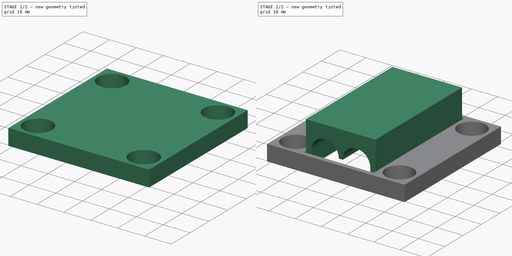
[diagram: build sequence overview — one tinted view per stage of 2, left to right]
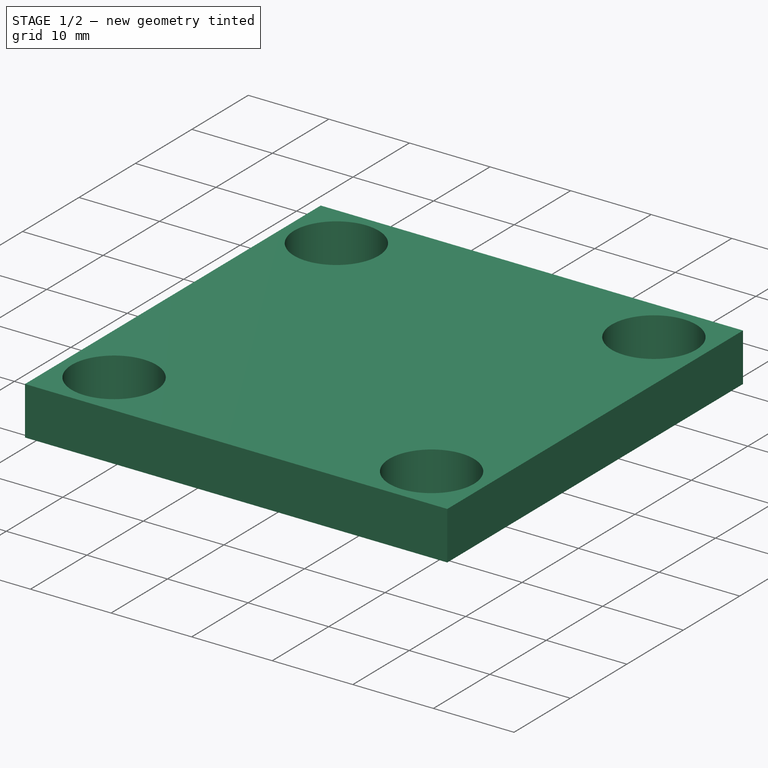
[diagram: stage 1 of 2 — iso view after this stage's code; geometry added in this stage tinted green]
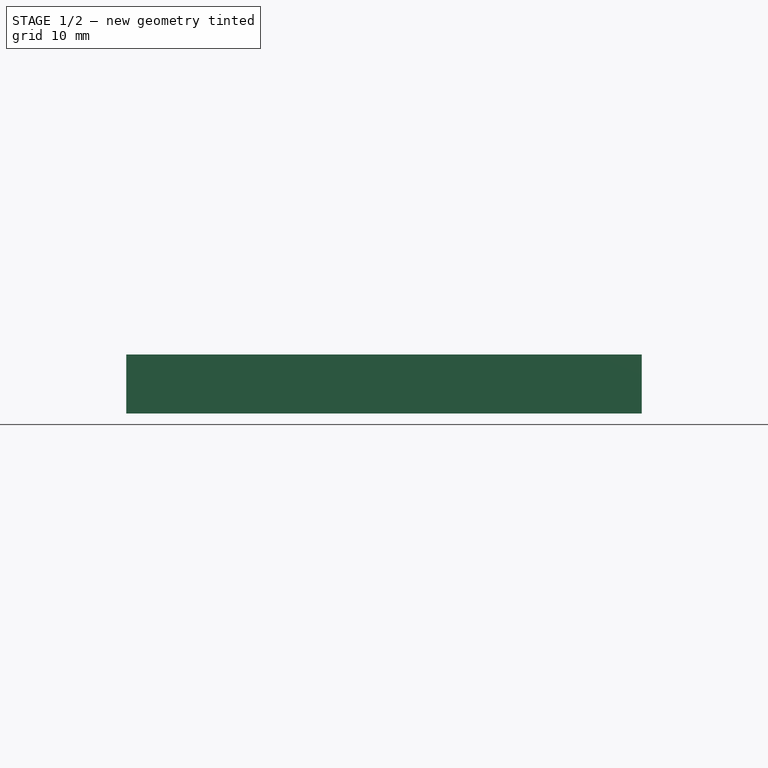
[diagram: stage 1 of 2 — front view after this stage's code; geometry added in this stage tinted green]
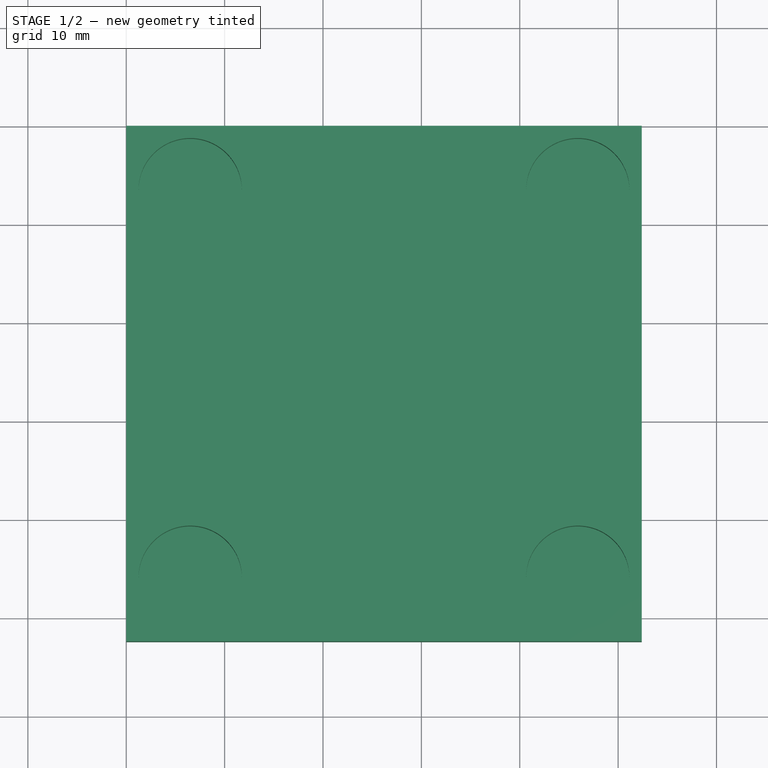
[diagram: stage 1 of 2 — top view after this stage's code; geometry added in this stage tinted green]
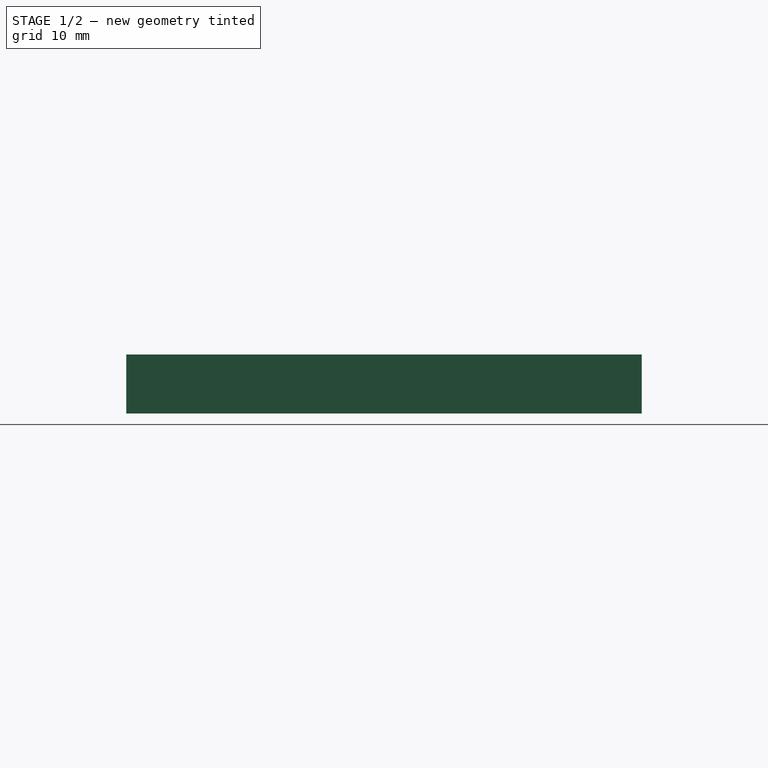
[diagram: stage 1 of 2 — right view after this stage's code; geometry added in this stage tinted green]
FCSTD DOCUMENT  (FreeCAD 0.19RUnknown)
Label: Option_3
License: All rights reserved
LicenseURL: http://en.wikipedia.org/wiki/All_rights_reserved
objects: Sketcher::SketchObject×6, PartDesign::Body×3, PartDesign::Pad×2, PartDesign::Pocket×2, PartDesign::Plane×2, PartDesign::ShapeBinder×1
note: 20 computed .brp shape members not serialized (recipe doc carries the construction recipe); baked Part::Feature solids carry a one-line shape summary decoded from their .brp

FEATURE [Sketcher::SketchObject] Sketch
  FullyConstrained = true
  MapMode = 5
  Support = -> [XY_Plane]
  sketch-geometry (4):
    g0: LineSegment StartX=0 StartY=0 StartZ=0 EndX=52.4 EndY=0 EndZ=0
    g1: LineSegment StartX=52.4 StartY=0 StartZ=0 EndX=52.4 EndY=-52.4 EndZ=0
    g2: LineSegment StartX=52.4 StartY=-52.4 StartZ=0 EndX=0 EndY=-52.4 EndZ=0
    g3: LineSegment StartX=0 StartY=-52.4 StartZ=0 EndX=0 EndY=0 EndZ=0
  constraints (11):
    c: Coincident(g0,g1)
    c: Coincident(g1,g2)
    c: Coincident(g2,g3)
    c: Coincident(g3,g0)
    c: Horizontal(g0)
    c: Horizontal(g2)
    c: Vertical(g1)
    c: Vertical(g3)
    c: Coincident(g0,g-1)
    c: DistanceY(g3,g3) = 52.4
    c: DistanceX(g0,g0) = 52.4
FEATURE [PartDesign::Pad] Pad
  Direction = (1,1,1)
  Length = 6
  Length2 = 100
  Profile = -> Sketch
  Type = 0
FEATURE [Sketcher::SketchObject] Sketch001
  ExternalGeometry = -> [Pad]
  FullyConstrained = true
  MapMode = 5
  Placement = pos=(0,0,6) rot=(0,0,1;0rad)
  Support = -> [Pad]
  sketch-geometry (12):
    g0: LineSegment StartX=52.4 StartY=0 StartZ=0 EndX=0 EndY=0 EndZ=0
    g1: LineSegment StartX=0 StartY=0 StartZ=0 EndX=0 EndY=-52.4 EndZ=0
    g2: LineSegment StartX=0 StartY=-52.4 StartZ=0 EndX=52.4 EndY=-52.4 EndZ=0
    g3: LineSegment StartX=52.4 StartY=-52.4 StartZ=0 EndX=52.4 EndY=0 EndZ=0
    g4: Circle CenterX=6.5 CenterY=-6.5 CenterZ=0 NormalX=0 NormalY=0 NormalZ=1 AngleXU=0 Radius=6.5
    g5: Circle CenterX=45.9 CenterY=-6.5 CenterZ=0 NormalX=0 NormalY=0 NormalZ=1 AngleXU=0 Radius=6.5
    g6: Circle CenterX=6.5 CenterY=-45.9 CenterZ=0 NormalX=0 NormalY=0 NormalZ=1 AngleXU=0 Radius=6.5
    g7: Circle CenterX=45.9 CenterY=-45.9 CenterZ=0 NormalX=0 NormalY=0 NormalZ=1 AngleXU=0 Radius=6.5
    g8: Circle CenterX=6.5 CenterY=-6.5 CenterZ=0 NormalX=0 NormalY=0 NormalZ=1 AngleXU=0 Radius=5.25
    g9: Circle CenterX=45.9 CenterY=-6.5 CenterZ=0 NormalX=0 NormalY=0 NormalZ=1 AngleXU=0 Radius=5.25
    g10: Circle CenterX=45.9 CenterY=-45.9 CenterZ=0 NormalX=0 NormalY=0 NormalZ=1 AngleXU=0 Radius=5.25
    g11: Circle CenterX=6.5 CenterY=-45.9 CenterZ=0 NormalX=0 NormalY=0 NormalZ=1 AngleXU=0 Radius=5.25
  constraints (30):
    c: Coincident(g0,g1)
    c: Coincident(g1,g2)
    c: Coincident(g2,g3)
    c: Coincident(g3,g0)
    c: Horizontal(g0)
    c: Horizontal(g2)
    c: Vertical(g1)
    c: Vertical(g3)
    c: Coincident(g0,g-3)
    c: Coincident(g1,g-4)
    c: Tangent(g4,g1)
    c: Tangent(g5,g3)
    c: Tangent(g6,g1)
    c: Tangent(g7,g3)
    c: Diameter(g4) = 13
    c: Diameter(g5) = 13
    c: Diameter(g6) = 13
    c: Diameter(g7) = 13
    c: Tangent(g4,g0)
    c: Tangent(g5,g0)
    c: Tangent(g2,g6)
    c: Tangent(g7,g2)
    c: Coincident(g8,g4)
    c: Coincident(g9,g5)
    c: Coincident(g10,g7)
    c: Coincident(g11,g6)
    c: Diameter(g10) = 10.5
    c: Diameter(g11) = 10.5
    c: Diameter(g8) = 10.5
    c: Diameter(g9) = 10.5
FEATURE [PartDesign::Pocket] Pocket
  BaseFeature = -> Pad
  Length = 5
  Length2 = 100
  Profile = -> Sketch001
  Type = 0
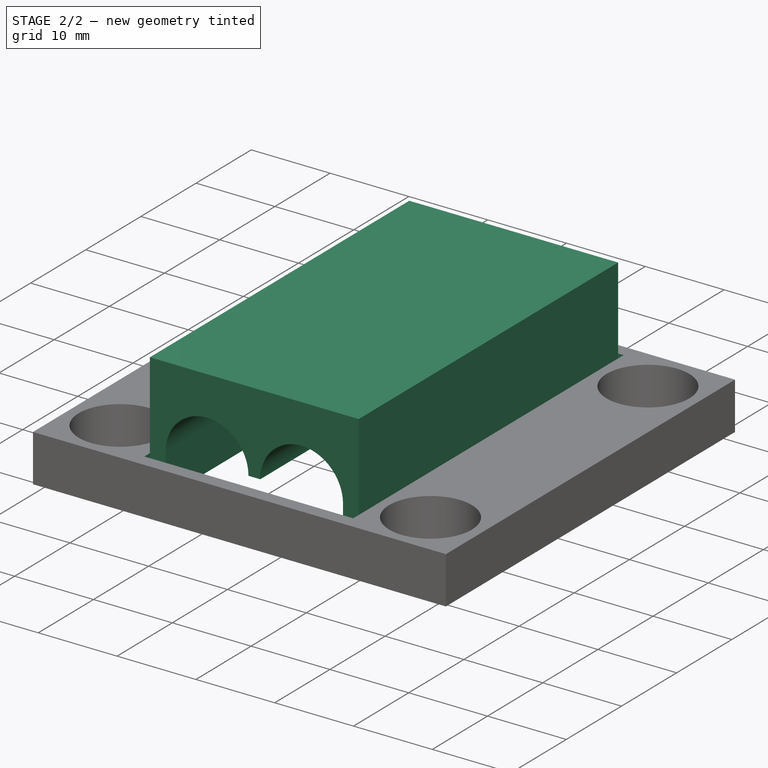
[diagram: stage 2 of 2 — iso view after this stage's code; geometry added in this stage tinted green]
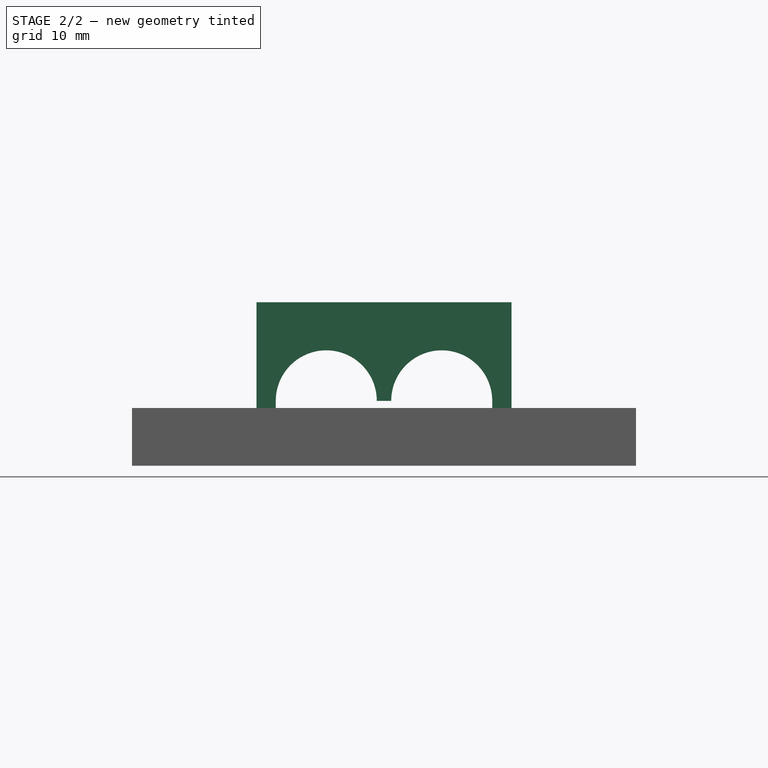
[diagram: stage 2 of 2 — front view after this stage's code; geometry added in this stage tinted green]
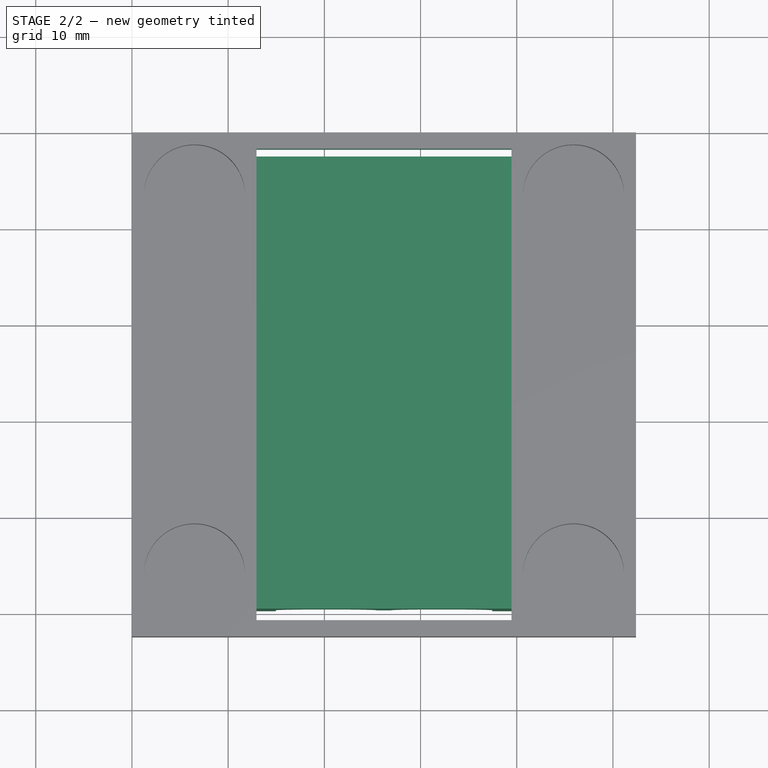
[diagram: stage 2 of 2 — top view after this stage's code; geometry added in this stage tinted green]
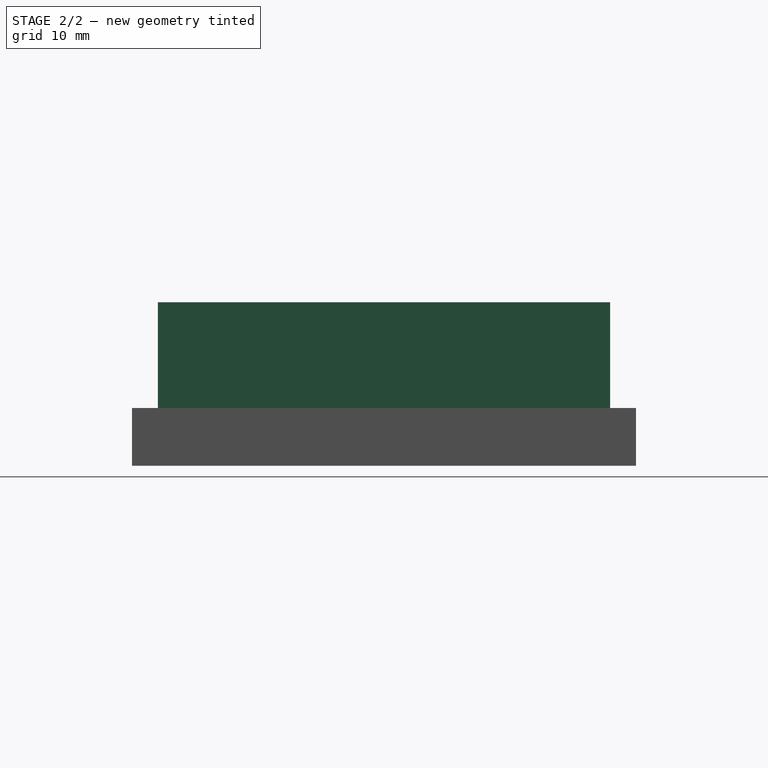
[diagram: stage 2 of 2 — right view after this stage's code; geometry added in this stage tinted green]
FEATURE [PartDesign::ShapeBinder] ShapeBinder
  Support = -> [Pocket]
  TraceSupport = false
FEATURE [PartDesign::Plane] DatumPlane
  AttachmentOffset = pos=(0,0,-26.2) rot=(0,0,1;0rad)
  Length = 89.8419
  MapMode = 5
  Placement = pos=(0,-26.2,5.8e-15) rot=(0,0.707107,0.707107;3.14159rad)
  ResizeMode = 0
  Support = -> [ShapeBinder]
  Width = 62.4419
FEATURE [Sketcher::SketchObject] Sketch002
  ExternalGeometry = -> [ShapeBinder]
  FullyConstrained = false
  MapMode = 5
  Placement = pos=(0,-26.2,5.8e-15) rot=(0,0.707107,0.707107;3.14159rad)
  Support = -> [DatumPlane]
  sketch-geometry (14):
    g0: LineSegment StartX=-52.4 StartY=6 StartZ=0 EndX=0 EndY=6 EndZ=0
    g1: LineSegment StartX=0 StartY=6 StartZ=0 EndX=0 EndY=7 EndZ=0
    g2: LineSegment StartX=0 StartY=7 StartZ=0 EndX=-52.4 EndY=7 EndZ=0
    g3: LineSegment StartX=-52.4 StartY=7 StartZ=0 EndX=-52.4 EndY=6 EndZ=0
    g4: LineSegment StartX=-50.4 StartY=7 StartZ=0 EndX=-2 EndY=7 EndZ=0
    g5: LineSegment StartX=-2 StartY=7 StartZ=0 EndX=-2 EndY=11 EndZ=0
    g6: LineSegment StartX=-2 StartY=11 StartZ=0 EndX=-50.4 EndY=11 EndZ=0
    g7: LineSegment StartX=-50.4 StartY=11 StartZ=0 EndX=-50.4 EndY=7 EndZ=0
    g8: Circle CenterX=-45.15 CenterY=12.4669 CenterZ=0 NormalX=0 NormalY=0 NormalZ=1 AngleXU=0 Radius=5.25
    g9: Circle CenterX=-7.75 CenterY=12.25 CenterZ=0 NormalX=0 NormalY=0 NormalZ=1 AngleXU=0 Radius=5.25
    g10: LineSegment StartX=-38.3604 StartY=11.6421 StartZ=0 EndX=-12.8296 EndY=11.6421 EndZ=0
    g11: LineSegment StartX=-12.8296 StartY=11.6421 StartZ=0 EndX=-12.8296 EndY=15.8309 EndZ=0
    g12: LineSegment StartX=-12.8296 StartY=15.8309 StartZ=0 EndX=-38.3604 EndY=15.8309 EndZ=0
    g13: LineSegment StartX=-38.3604 StartY=15.8309 StartZ=0 EndX=-38.3604 EndY=11.6421 EndZ=0
  constraints (36):
    c: Coincident(g0,g1)
    c: Coincident(g1,g2)
    c: Coincident(g2,g3)
    c: Coincident(g3,g0)
    c: Horizontal(g2)
    c: Vertical(g1)
    c: Vertical(g3)
    c: Coincident(g0,g-3)
    c: Coincident(g0,g-4)
    c: DistanceY(g3,g3) = 1
    c: Coincident(g4,g5)
    c: Coincident(g5,g6)
    c: Coincident(g6,g7)
    c: Coincident(g7,g4)
    c: Horizontal(g4)
    c: Horizontal(g6)
    c: Vertical(g5)
    c: Vertical(g7)
    c: PointOnObject(g4,g2)
    c: DistanceX(g2,g4) = 2
    c: DistanceX(g4,g1) = 2
    c: Diameter(g8) = 10.5
    c: Tangent(g8,g7)
    c: Diameter(g9) = 10.5
    c: Tangent(g9,g2)
    c: DistanceY(g7,g7) = 4
    c: Coincident(g10,g11)
    c: Coincident(g11,g12)
    c: Coincident(g12,g13)
    c: Coincident(g13,g10)
    c: Horizontal(g10)
    c: Horizontal(g12)
    c: Vertical(g11)
    c: Vertical(g13)
    c: DistanceX(g12,g12) = 25.5308
    c: DistanceX(g9,g5) = 5.75
FEATURE [PartDesign::Body] Body001  label="battery"
  Group = -> [ShapeBinder,DatumPlane,Sketch002]
  Origin = -> Origin001
FEATURE [PartDesign::Plane] DatumPlane001
  AttachmentOffset = pos=(0,0,-26.2) rot=(0,0,1;0rad)
  Length = 89.8419
  MapMode = 5
  Placement = pos=(0,-26.2,-5.8e-15) rot=(1,0,0;1.5708rad)
  ResizeMode = 0
  Support = -> [Pocket]
  Width = 62.4419
FEATURE [Sketcher::SketchObject] Sketch003
  ExternalGeometry = -> [Pocket]
  FullyConstrained = false
  MapMode = 5
  Placement = pos=(0,-26.2,-5.8e-15) rot=(1,0,0;1.5708rad)
  Support = -> [DatumPlane001]
  sketch-geometry (17):
    g0: LineSegment StartX=0 StartY=6 StartZ=0 EndX=52.4 EndY=6 EndZ=0
    g1: LineSegment StartX=52.4 StartY=6 StartZ=0 EndX=52.4 EndY=0 EndZ=0
    g2: LineSegment StartX=52.4 StartY=0 StartZ=0 EndX=0 EndY=0 EndZ=0
    g3: LineSegment StartX=0 StartY=0 StartZ=0 EndX=0 EndY=6 EndZ=0
    g4: LineSegment StartX=26.2 StartY=18.1698 StartZ=0 EndX=26.2 EndY=-9.44134 EndZ=0
    g5: Circle CenterX=20.2 CenterY=6.75 CenterZ=0 NormalX=0 NormalY=0 NormalZ=1 AngleXU=0 Radius=5.25
    g6: Circle CenterX=32.2 CenterY=6.75 CenterZ=0 NormalX=0 NormalY=0 NormalZ=1 AngleXU=0 Radius=5.25
    g7: LineSegment StartX=9.06848 StartY=6.75 StartZ=0 EndX=48.0134 EndY=6.75 EndZ=0
    g8: LineSegment StartX=12.5705 StartY=1.5 StartZ=0 EndX=37.8862 EndY=1.5 EndZ=0
    g9: LineSegment StartX=12.95 StartY=9.48699 StartZ=0 EndX=39.45 EndY=9.48699 EndZ=0
    g10: LineSegment StartX=39.45 StartY=9.48699 StartZ=0 EndX=39.45 EndY=0 EndZ=0
    g11: LineSegment StartX=39.45 StartY=0 StartZ=0 EndX=12.95 EndY=0 EndZ=0
    g12: LineSegment StartX=12.95 StartY=0 StartZ=0 EndX=12.95 EndY=9.48699 EndZ=0
    g13: LineSegment StartX=14.95 StartY=13.6364 StartZ=0 EndX=37.45 EndY=13.6364 EndZ=0
    g14: LineSegment StartX=37.45 StartY=13.6364 StartZ=0 EndX=37.45 EndY=3.54924 EndZ=0
    g15: LineSegment StartX=37.45 StartY=3.54924 StartZ=0 EndX=14.95 EndY=3.54924 EndZ=0
    g16: LineSegment StartX=14.95 StartY=3.54924 StartZ=0 EndX=14.95 EndY=13.6364 EndZ=0
  constraints (44):
    c: Coincident(g0,g1)
    c: Coincident(g1,g2)
    c: Coincident(g2,g3)
    c: Coincident(g3,g0)
    c: Horizontal(g0)
    c: Horizontal(g2)
    c: Vertical(g1)
    c: Vertical(g3)
    c: Coincident(g0,g-4)
    c: Coincident(g1,g-3)
    c: Vertical(g4)
    c: DistanceX(g0,g4) = 26.2
    c: Diameter(g5) = 10.5
    c: Diameter(g6) = 10.5
    c: Horizontal(g7)
    c: PointOnObject(g5,g7)
    c: PointOnObject(g6,g7)
    c: DistanceX(g5,g6) = 12
    c: DistanceX(g5,g4) = 6
    c: Horizontal(g8)
    c: Tangent(g8,g6)
    c: DistanceY(g-1,g8) = 1.5
    c: Coincident(g9,g10)
    c: Coincident(g10,g11)
    c: Coincident(g11,g12)
    c: Coincident(g12,g9)
    c: Horizontal(g9)
    c: Horizontal(g11)
    c: Vertical(g10)
    c: Vertical(g12)
    c: Coincident(g13,g14)
    c: Coincident(g14,g15)
    c: Coincident(g15,g16)
    c: Coincident(g16,g13)
    c: Horizontal(g13)
    c: Horizontal(g15)
    c: Vertical(g14)
    c: Vertical(g16)
    c: Tangent(g5,g16)
    c: Tangent(g6,g14)
    c: DistanceX(g13,g13) = 22.5
    c: PointOnObject(g11,g2)
    c: DistanceX(g9,g13) = 2
    c: DistanceX(g13,g9) = 2
FEATURE [PartDesign::Pocket] Pocket001
  BaseFeature = -> Pocket
  Length = 49
  Length2 = 100
  Midplane = true
  Profile = -> Sketch003
  Type = 0
FEATURE [Sketcher::SketchObject] Sketch004
  ExternalGeometry = -> [Pocket001]
  FullyConstrained = false
  MapMode = 5
  Placement = pos=(0,-26.2,-5.8e-15) rot=(1,0,0;1.5708rad)
  Support = -> [DatumPlane001]
  sketch-geometry (13):
    g0: LineSegment StartX=26.2 StartY=-5.30025 StartZ=0 EndX=26.2 EndY=19.9909 EndZ=0
    g1: ArcOfCircle CenterX=20.2 CenterY=6.75 CenterZ=0 NormalX=0 NormalY=0 NormalZ=1 AngleXU=0 Radius=5.25 StartAngle=0 EndAngle=3.14159
    g2: ArcOfCircle CenterX=32.2 CenterY=6.75 CenterZ=0 NormalX=0 NormalY=0 NormalZ=1 AngleXU=0 Radius=5.25 StartAngle=0 EndAngle=3.14159
    g3: LineSegment StartX=25.45 StartY=6.75 StartZ=0 EndX=26.95 EndY=6.75 EndZ=0
    g4: LineSegment StartX=12.95 StartY=1.5 StartZ=0 EndX=14.95 EndY=1.5 EndZ=0
    g5: LineSegment StartX=14.95 StartY=1.5 StartZ=0 EndX=14.95 EndY=6.75 EndZ=0
    g6: LineSegment StartX=12.95 StartY=17 StartZ=0 EndX=12.95 EndY=1.5 EndZ=0
    g7: LineSegment StartX=12.95 StartY=6 StartZ=0 EndX=12.95 EndY=0 EndZ=0
    g8: LineSegment StartX=12.95 StartY=17 StartZ=0 EndX=39.45 EndY=17 EndZ=0
    g9: LineSegment StartX=37.45 StartY=6.75 StartZ=0 EndX=37.45 EndY=1.5 EndZ=0
    g10: LineSegment StartX=37.45 StartY=1.5 StartZ=0 EndX=39.45 EndY=1.5 EndZ=0
    g11: LineSegment StartX=39.45 StartY=1.5 StartZ=0 EndX=39.45 EndY=17 EndZ=0
    g12: LineSegment StartX=39.45 StartY=6 StartZ=0 EndX=39.45 EndY=0 EndZ=0
  constraints (35):
    c: Vertical(g0)
    c: DistanceX(g-3,g-4) = 26.5
    c: DistanceX(g-3,g0) = 13.25
    c: Diameter(g1) = 10.5
    c: Diameter(g2) = 10.5
    c: DistanceX(g1,g2) = 12
    c: Horizontal(g3)
    c: PointOnObject(g2,g3)
    c: PointOnObject(g1,g3)
    c: DistanceX(g1,g0) = 6
    c: DistanceY(g-5,g1) = 6.75
    c: Coincident(g4,g5)
    c: Coincident(g6,g4)
    c: Horizontal(g4)
    c: Vertical(g5)
    c: Vertical(g6)
    c: Coincident(g7,g-3)
    c: Coincident(g7,g-5)
    c: PointOnObject(g4,g7)
    c: DistanceY(g7,g4) = 1.5
    c: DistanceY(g7,g6) = 11
    c: Horizontal(g8)
    c: Coincident(g9,g10)
    c: Coincident(g10,g11)
    c: Horizontal(g10)
    c: Vertical(g9)
    c: Vertical(g11)
    c: Coincident(g12,g-4)
    c: Coincident(g12,g-6)
    c: PointOnObject(g10,g12)
    c: DistanceY(g12,g9) = 1.5
    c: Coincident(g3,g1)
    c: Coincident(g3,g2)
    c: Tangent(g5,g1) = 1.5708
    c: Tangent(g9,g2) = 1.5708
FEATURE [PartDesign::Pad] Pad001
  BaseFeature = -> Pocket001
  Direction = (1,1,1)
  Length = 47
  Length2 = 100
  Midplane = true
  Profile = -> Sketch004
  Type = 0
FEATURE [PartDesign::Body] Body002
  Origin = -> Origin002
FEATURE [Sketcher::SketchObject] Sketch005
  ExternalGeometry = -> [Pad001]
  FullyConstrained = false
  MapMode = 5
  Placement = pos=(0,-2.7,7e-16) rot=(0,0.707107,0.707107;3.14159rad)
  Support = -> [Pad001]
  sketch-geometry (4):
    g0: LineSegment StartX=-12.95 StartY=17 StartZ=0 EndX=-39.45 EndY=17 EndZ=0
    g1: LineSegment StartX=-39.45 StartY=17 StartZ=0 EndX=-39.45 EndY=14.6644 EndZ=0
    g2: LineSegment StartX=-39.45 StartY=14.6644 StartZ=0 EndX=-12.95 EndY=14.6644 EndZ=0
    g3: LineSegment StartX=-12.95 StartY=14.6644 StartZ=0 EndX=-12.95 EndY=17 EndZ=0
  constraints (10):
    c: Coincident(g0,g1)
    c: Coincident(g1,g2)
    c: Coincident(g2,g3)
    c: Coincident(g3,g0)
    c: Horizontal(g0)
    c: Horizontal(g2)
    c: Vertical(g1)
    c: Vertical(g3)
    c: Coincident(g0,g-3)
    c: PointOnObject(g1,g-5)
FEATURE [PartDesign::Body] Body  label="Base"
  Group = -> [Sketch,Pad,Sketch001,Pocket,DatumPlane001,Sketch003,Pocket001,Sketch004,Pad001,Sketch005]
  Origin = -> Origin
  Tip = -> Pad001
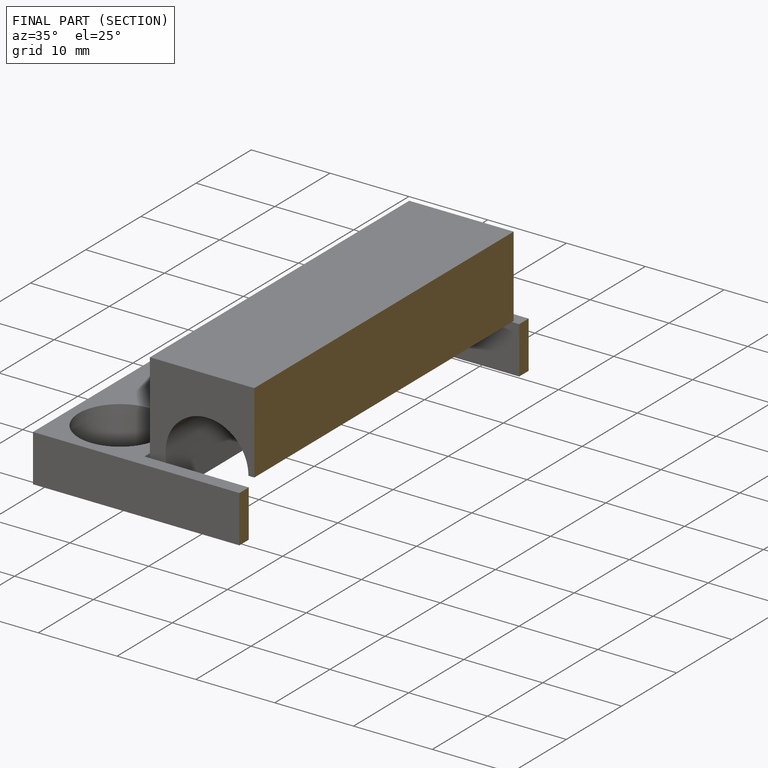
[diagram: finished part — half-section view (interior)]
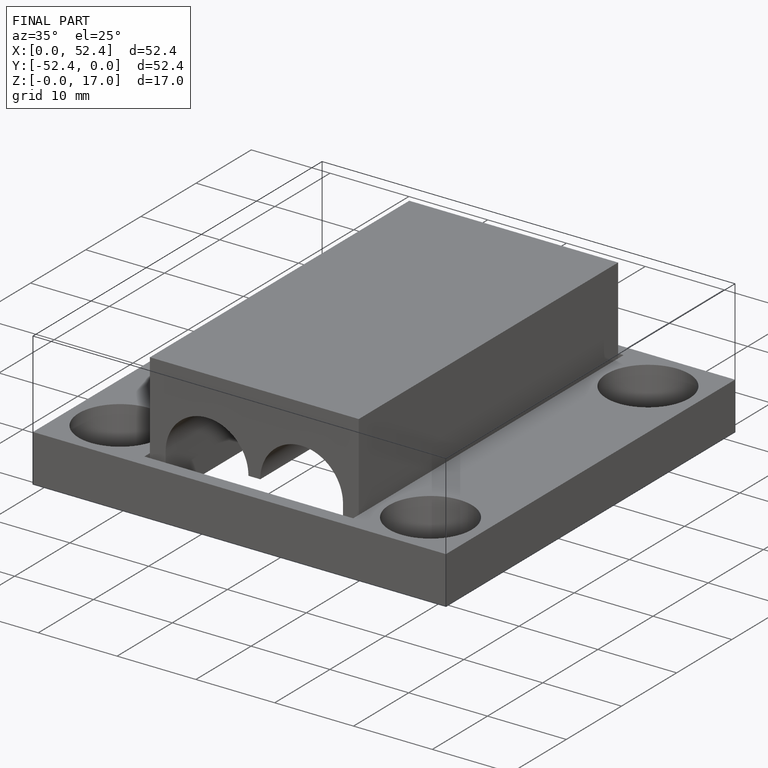
[diagram: finished part — iso view with bounding-box wireframe]
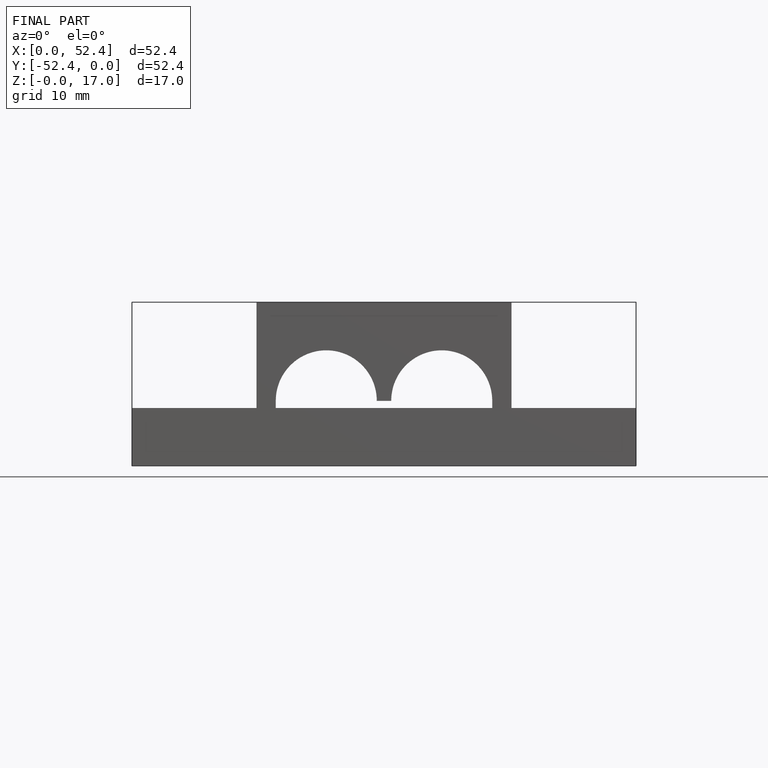
[diagram: finished part — front view with bounding-box wireframe]
